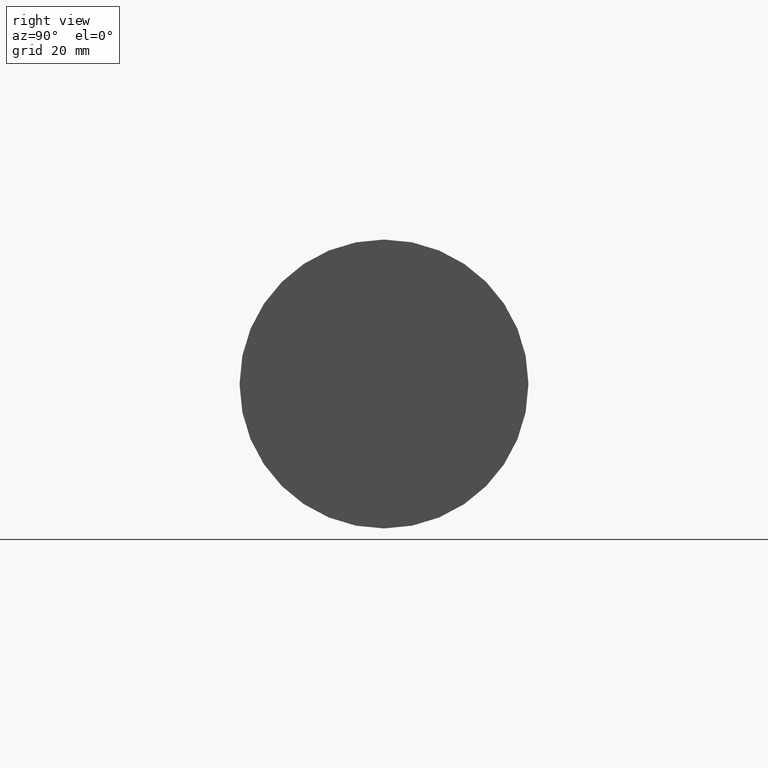
[diagram: clean part render]
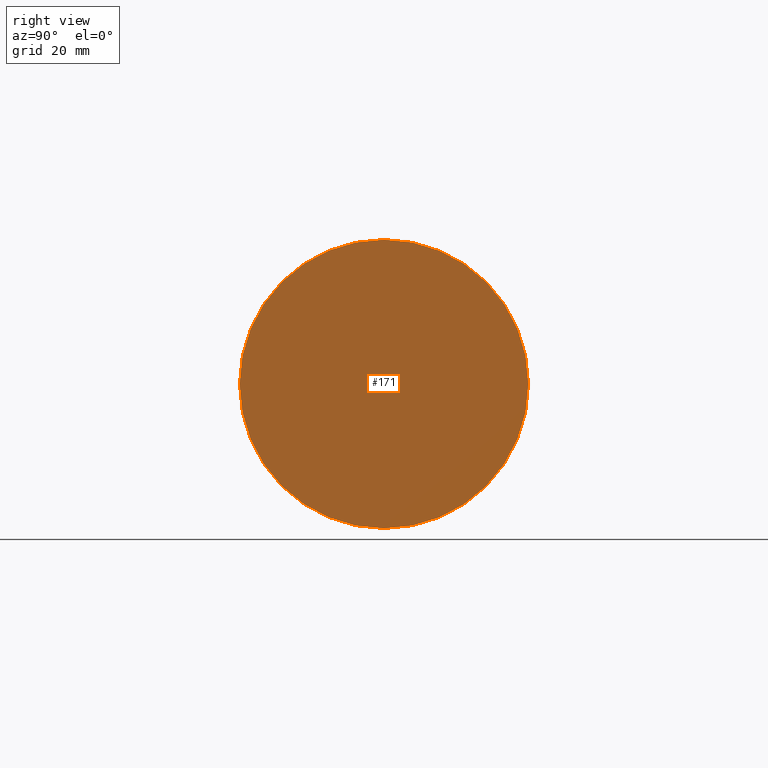
[diagram: same view with one face highlighted and labeled with its STEP entity id]
A machine part, right view. The second image highlights one B-rep face of the part: STEP entity #171.
In plain terms, the highlighted planar face has unit normal (1, 0, 0).
Its self-contained STEP definition (entity closure, byte-faithful):
#3 = PLANE ( 'NONE',  #201 ) ;
#11 = EDGE_CURVE ( 'NONE', #220, #199, #114, .T. ) ;
#48 = DIRECTION ( 'NONE',  ( 0.000000000000000000, 0.000000000000000000, -1.000000000000000000 ) ) ;
#76 = DIRECTION ( 'NONE',  ( 1.000000000000000000, 0.000000000000000000, 0.000000000000000000 ) ) ;
#77 = CARTESIAN_POINT ( 'NONE',  ( 74.99999992349999900, 0.000000000000000000, 0.000000000000000000 ) ) ;
#83 = DIRECTION ( 'NONE',  ( 1.000000000000000000, 0.000000000000000000, 0.000000000000000000 ) ) ;
#86 = CARTESIAN_POINT ( 'NONE',  ( 74.99999992349999900, 0.000000000000000000, 0.000000000000000000 ) ) ;
#109 = AXIS2_PLACEMENT_3D ( 'NONE', #77, #76, #48 ) ;
#111 = CARTESIAN_POINT ( 'NONE',  ( 74.99999992349999900, 0.000000000000000000, -24.99999997449999967 ) ) ;
#114 = CIRCLE ( 'NONE', #109, 24.99999997449999967 ) ;
#126 = CIRCLE ( 'NONE', #259, 24.99999997449999967 ) ;
#150 = EDGE_CURVE ( 'NONE', #199, #220, #126, .T. ) ;
#168 = DIRECTION ( 'NONE',  ( 1.000000000000000000, 0.000000000000000000, 0.000000000000000000 ) ) ;
#169 = CARTESIAN_POINT ( 'NONE',  ( 74.99999992349999900, 3.061616994745535943E-15, 24.99999997449999967 ) ) ;
#171 = ADVANCED_FACE ( 'NONE', ( #332 ), #3, .T. ) ;
#191 = DIRECTION ( 'NONE',  ( 0.000000000000000000, 1.000000000000000000, 0.000000000000000000 ) ) ;
#192 = CARTESIAN_POINT ( 'NONE',  ( 74.99999992349999900, 24.99999997449999967, 0.000000000000000000 ) ) ;
#196 = ORIENTED_EDGE ( 'NONE', *, *, #150, .T. ) ;
#199 = VERTEX_POINT ( 'NONE', #169 ) ;
#201 = AXIS2_PLACEMENT_3D ( 'NONE', #192, #83, #191 ) ;
#216 = DIRECTION ( 'NONE',  ( 0.000000000000000000, 0.000000000000000000, -1.000000000000000000 ) ) ;
#220 = VERTEX_POINT ( 'NONE', #111 ) ;
#259 = AXIS2_PLACEMENT_3D ( 'NONE', #86, #168, #216 ) ;
#283 = EDGE_LOOP ( 'NONE', ( #289, #196 ) ) ;
#289 = ORIENTED_EDGE ( 'NONE', *, *, #11, .T. ) ;
#332 = FACE_OUTER_BOUND ( 'NONE', #283, .T. ) ;